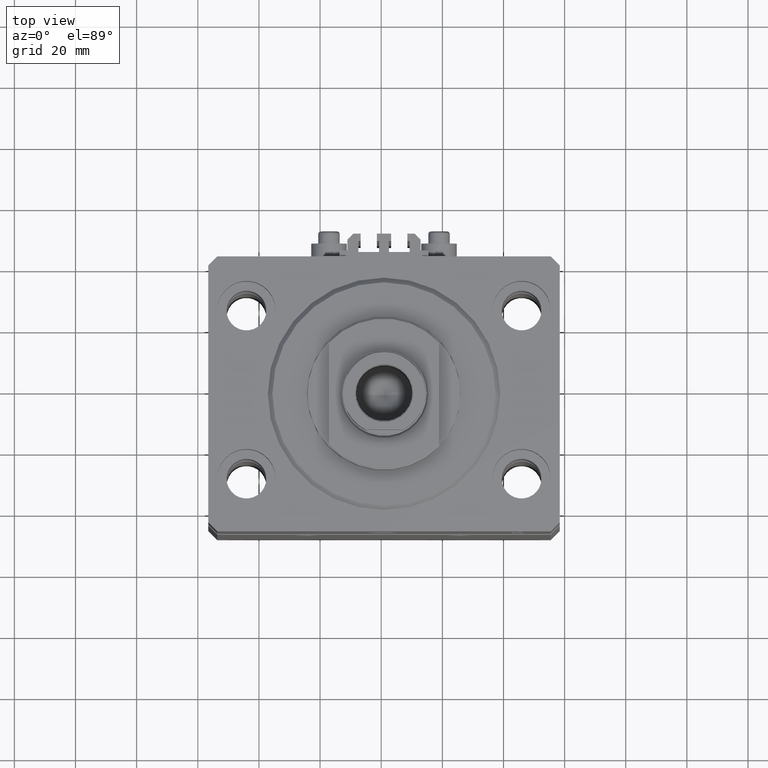
[diagram: clean part render]
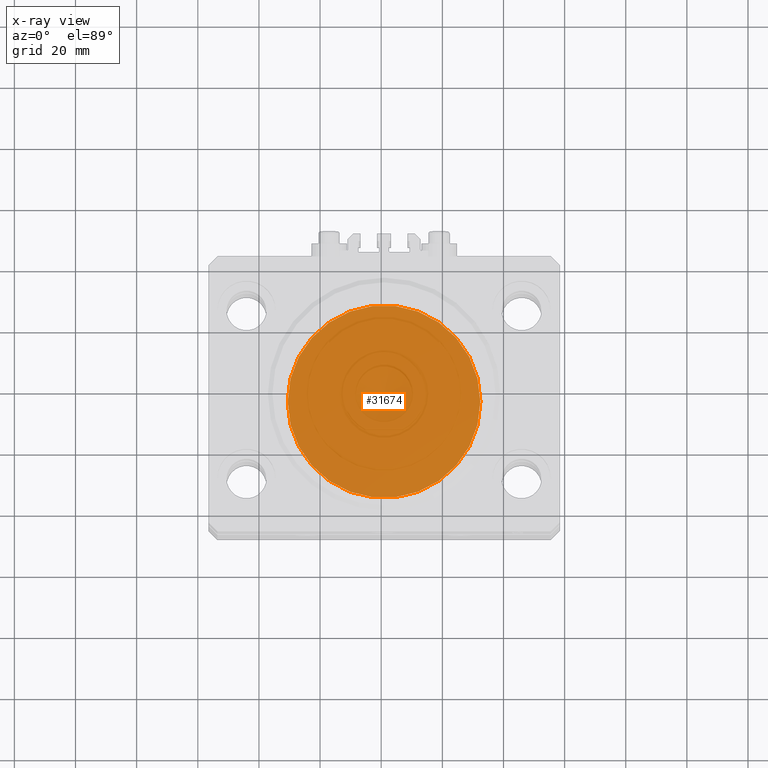
[diagram: x-ray — body ghosted, one internal face saturated and labeled with its STEP entity id]
A machine part, top view, then the same camera in x-ray: the body is ghosted and one INTERNAL B-rep face — a face not visible from any outside direction — is saturated and labeled: STEP entity #31674.
In plain terms, the highlighted planar face has unit normal (0, 0, 1).
Its self-contained STEP definition (entity closure, byte-faithful):
#6283 = FACE_OUTER_BOUND ( 'NONE', #30076, .T. ) ;
#9745 = AXIS2_PLACEMENT_3D ( 'NONE', #14778, #19290, #37672 ) ;
#11207 = DIRECTION ( 'NONE',  ( 1.000000000000000000, 0.000000000000000000, 0.000000000000000000 ) ) ;
#11722 = EDGE_CURVE ( 'NONE', #19033, #38138, #48235, .T. ) ;
#12928 = ORIENTED_EDGE ( 'NONE', *, *, #46717, .T. ) ;
#13340 = DIRECTION ( 'NONE',  ( 1.000000000000000000, 0.000000000000000000, -0.000000000000000000 ) ) ;
#14778 = CARTESIAN_POINT ( 'NONE',  ( 0.000000000000000000, 0.000000000000000000, -147.0999999999999943 ) ) ;
#15378 = CIRCLE ( 'NONE', #9745, 31.50000000000000000 ) ;
#16774 = AXIS2_PLACEMENT_3D ( 'NONE', #32228, #32477, #13340 ) ;
#19033 = VERTEX_POINT ( 'NONE', #41327 ) ;
#19290 = DIRECTION ( 'NONE',  ( 0.000000000000000000, 0.000000000000000000, 1.000000000000000000 ) ) ;
#26316 = CARTESIAN_POINT ( 'NONE',  ( 0.000000000000000000, 0.000000000000000000, -147.0999999999999943 ) ) ;
#26563 = DIRECTION ( 'NONE',  ( 0.000000000000000000, 0.000000000000000000, 1.000000000000000000 ) ) ;
#30076 = EDGE_LOOP ( 'NONE', ( #39706, #12928 ) ) ;
#31674 = ADVANCED_FACE ( 'NONE', ( #6283 ), #47810, .T. ) ;
#32228 = CARTESIAN_POINT ( 'NONE',  ( 0.000000000000000000, 0.000000000000000000, -147.0999999999999943 ) ) ;
#32477 = DIRECTION ( 'NONE',  ( 0.000000000000000000, 0.000000000000000000, 1.000000000000000000 ) ) ;
#37672 = DIRECTION ( 'NONE',  ( 1.000000000000000000, 0.000000000000000000, 0.000000000000000000 ) ) ;
#38138 = VERTEX_POINT ( 'NONE', #47999 ) ;
#39706 = ORIENTED_EDGE ( 'NONE', *, *, #11722, .T. ) ;
#41327 = CARTESIAN_POINT ( 'NONE',  ( 31.50000000000000000, 0.000000000000000000, -147.0999999999999943 ) ) ;
#43436 = AXIS2_PLACEMENT_3D ( 'NONE', #26316, #26563, #11207 ) ;
#46717 = EDGE_CURVE ( 'NONE', #38138, #19033, #15378, .T. ) ;
#47810 = PLANE ( 'NONE',  #16774 ) ;
#47999 = CARTESIAN_POINT ( 'NONE',  ( -31.50000000000000000, 3.857637417314162689E-15, -147.0999999999999943 ) ) ;
#48235 = CIRCLE ( 'NONE', #43436, 31.50000000000000000 ) ;